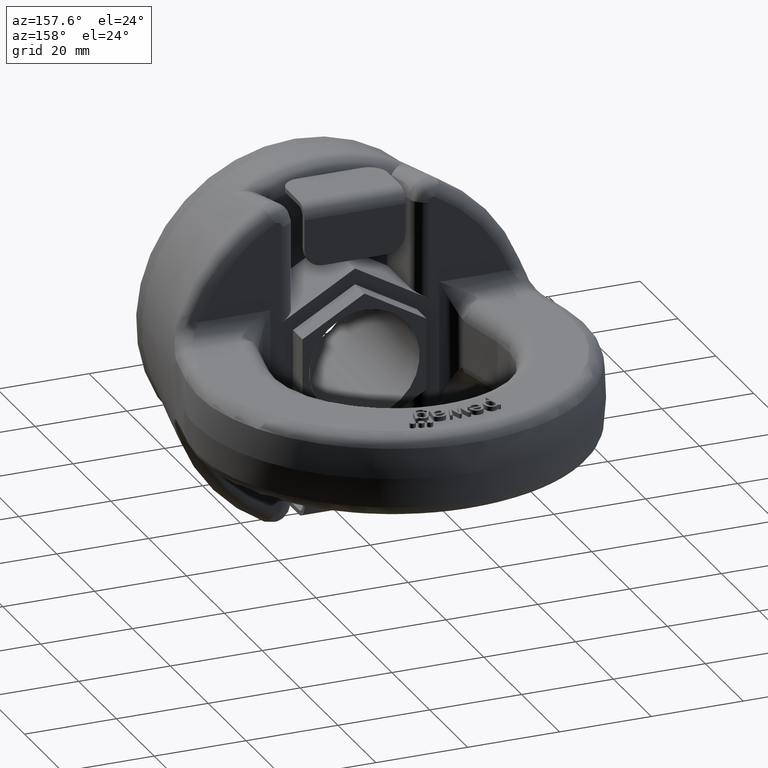
[diagram: clean part render]
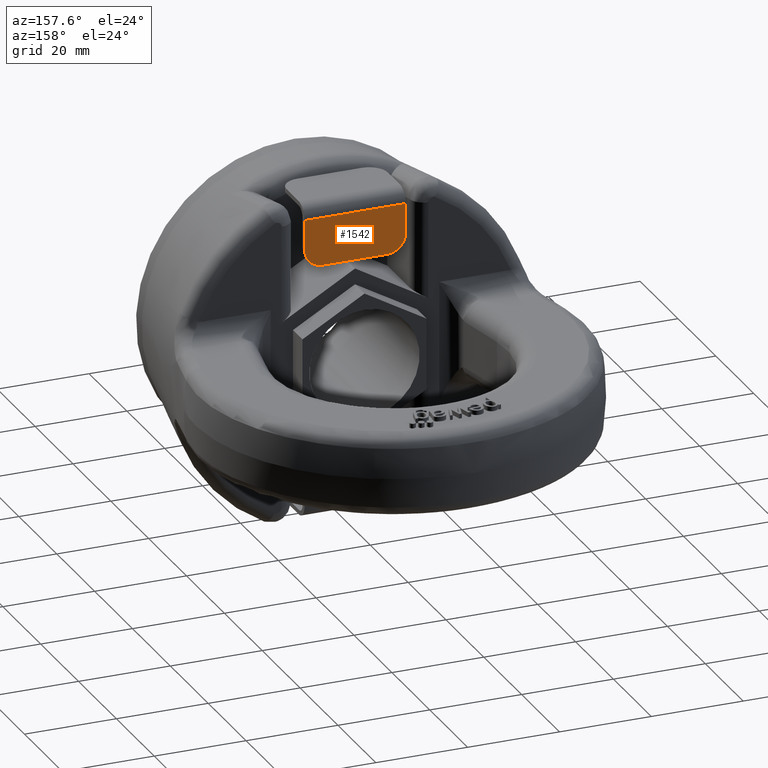
[diagram: same view with one face highlighted and labeled with its STEP entity id]
A machine part, auxiliary view. The second image highlights one B-rep face of the part: STEP entity #1542.
In plain terms, the highlighted planar face has unit normal (0, -1, 0).
Its self-contained STEP definition (entity closure, byte-faithful):
#1302=FACE_OUTER_BOUND('',#2083,.T.);
#1542=ADVANCED_FACE('',(#1302),#1666,.F.);
#1666=PLANE('',#5340);
#1754=CIRCLE('',#5338,4.);
#1755=CIRCLE('',#5339,4.);
#2083=EDGE_LOOP('',(#3768,#3769,#3770,#3771,#3772,#3773));
#2331=LINE('',#9641,#2657);
#2339=LINE('',#9663,#2665);
#2344=LINE('',#9676,#2670);
#2348=LINE('',#9690,#2674);
#2657=VECTOR('',#6106,1.);
#2665=VECTOR('',#6122,1.);
#2670=VECTOR('',#6131,1.);
#2674=VECTOR('',#6153,1.);
#3768=ORIENTED_EDGE('',*,*,#4792,.T.);
#3769=ORIENTED_EDGE('',*,*,#4800,.T.);
#3770=ORIENTED_EDGE('',*,*,#4786,.T.);
#3771=ORIENTED_EDGE('',*,*,#4801,.F.);
#3772=ORIENTED_EDGE('',*,*,#4776,.F.);
#3773=ORIENTED_EDGE('',*,*,#4802,.T.);
#4214=VERTEX_POINT('',#9640);
#4215=VERTEX_POINT('',#9642);
#4224=VERTEX_POINT('',#9662);
#4225=VERTEX_POINT('',#9664);
#4230=VERTEX_POINT('',#9675);
#4231=VERTEX_POINT('',#9677);
#4776=EDGE_CURVE('',#4214,#4215,#2331,.T.);
#4786=EDGE_CURVE('',#4225,#4224,#2339,.T.);
#4792=EDGE_CURVE('',#4231,#4230,#2344,.T.);
#4800=EDGE_CURVE('',#4230,#4225,#1754,.T.);
#4801=EDGE_CURVE('',#4215,#4224,#2348,.T.);
#4802=EDGE_CURVE('',#4214,#4231,#1755,.T.);
#5338=AXIS2_PLACEMENT_3D('',#9689,#6151,#6152);
#5339=AXIS2_PLACEMENT_3D('',#9691,#6154,#6155);
#5340=AXIS2_PLACEMENT_3D('',#9692,#6156,#6157);
#6106=DIRECTION('',(0.,0.,1.));
#6122=DIRECTION('',(0.,0.,1.));
#6131=DIRECTION('',(-1.,0.,0.));
#6151=DIRECTION('',(0.,1.,0.));
#6152=DIRECTION('',(0.,0.,-1.));
#6153=DIRECTION('',(-1.,0.,0.));
#6154=DIRECTION('',(0.,1.,0.));
#6155=DIRECTION('',(0.,0.,-1.));
#6156=DIRECTION('',(0.,-1.,0.));
#6157=DIRECTION('',(0.,0.,-1.));
#9640=CARTESIAN_POINT('',(11.,32.,25.));
#9641=CARTESIAN_POINT('',(11.,32.,21.));
#9642=CARTESIAN_POINT('',(11.,32.,31.5));
#9662=CARTESIAN_POINT('',(-11.,32.,31.5));
#9663=CARTESIAN_POINT('',(-11.,32.,21.));
#9664=CARTESIAN_POINT('',(-11.,32.,25.));
#9675=CARTESIAN_POINT('',(-7.,32.,21.));
#9676=CARTESIAN_POINT('',(11.,32.,21.));
#9677=CARTESIAN_POINT('',(7.,32.,21.));
#9689=CARTESIAN_POINT('',(-7.,32.,25.));
#9690=CARTESIAN_POINT('',(11.,32.,31.5));
#9691=CARTESIAN_POINT('',(7.,32.,25.));
#9692=CARTESIAN_POINT('',(11.,32.,21.));